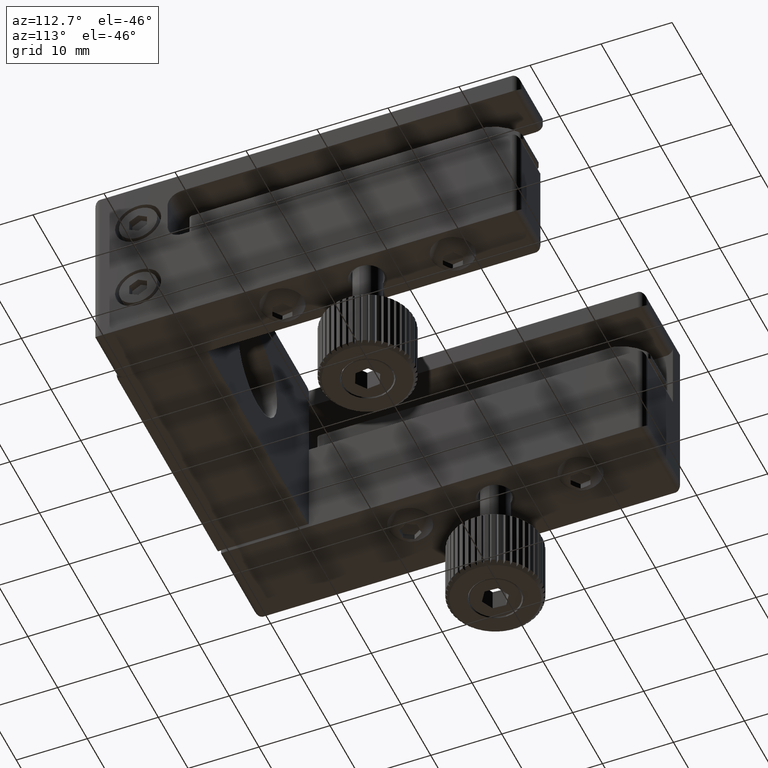
[diagram: clean part render]
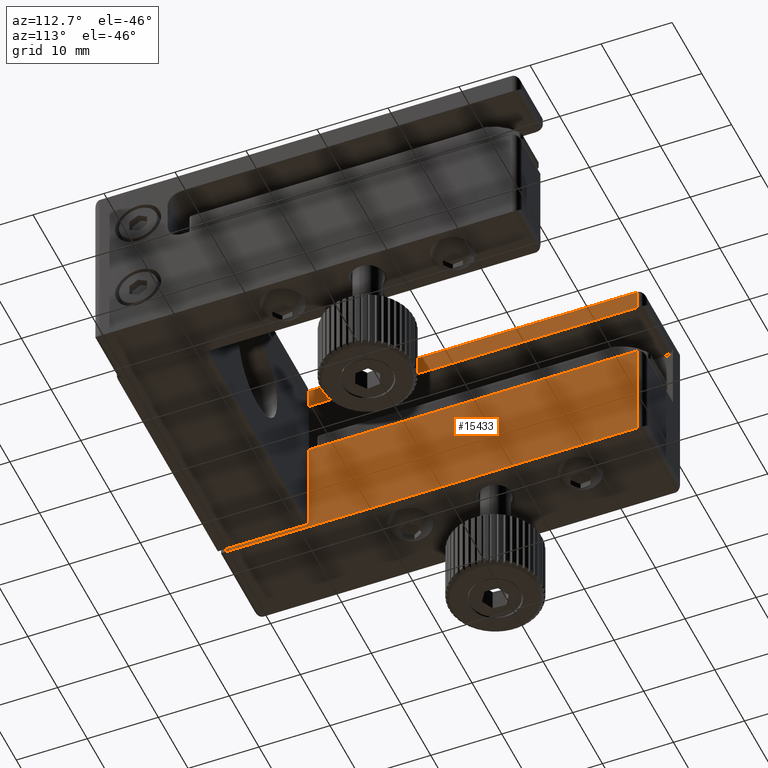
[diagram: same view with one face highlighted and labeled with its STEP entity id]
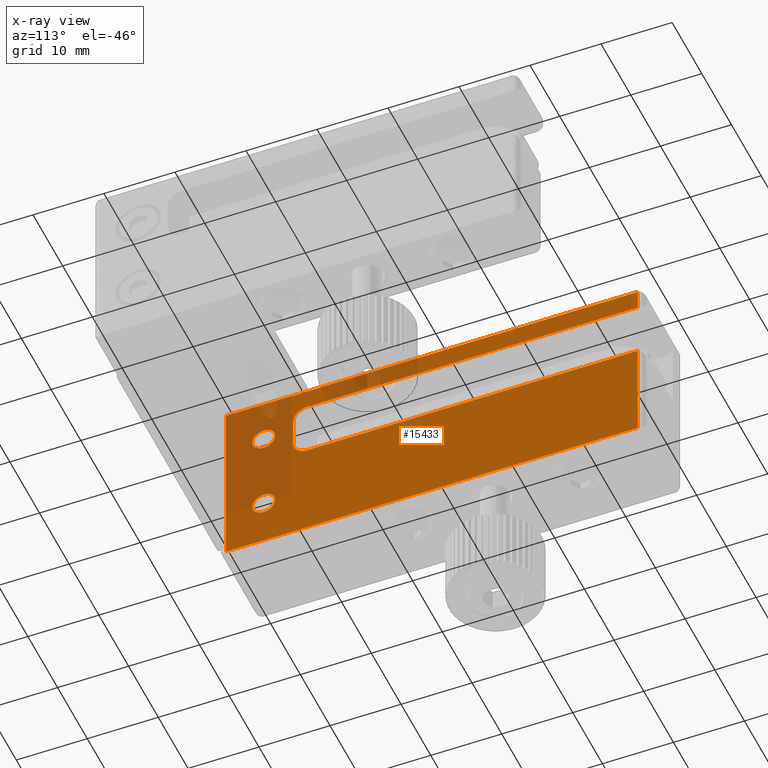
[diagram: x-ray of the same camera — body ghosted, the highlighted face saturated]
A machine part, auxiliary view. The second image highlights one B-rep face of the part: STEP entity #15433.
The next image is the same camera in x-ray: the body ghosted, the highlighted face saturated — about 18% of this face is hidden behind the body in this view.
In plain terms, the highlighted planar face has unit normal (-1, -0, 0).
Its self-contained STEP definition (entity closure, byte-faithful):
#93 = LINE ( 'NONE', #11748, #97 ) ;
#95 = CIRCLE ( 'NONE', #15787, 2.000000000000000000 ) ;
#97 = VECTOR ( 'NONE', #11745, 1000.000000000000000 ) ;
#102 = LINE ( 'NONE', #11756, #106 ) ;
#106 = VECTOR ( 'NONE', #11768, 1000.000000000000000 ) ;
#114 = LINE ( 'NONE', #11788, #116 ) ;
#116 = VECTOR ( 'NONE', #11789, 1000.000000000000000 ) ;
#130 = LINE ( 'NONE', #11812, #133 ) ;
#133 = VECTOR ( 'NONE', #11824, 1000.000000000000000 ) ;
#761 = AXIS2_PLACEMENT_3D ( 'NONE', #4827, #4828, #4829 ) ;
#813 = AXIS2_PLACEMENT_3D ( 'NONE', #6475, #6476, #6477 ) ;
#814 = AXIS2_PLACEMENT_3D ( 'NONE', #6485, #6486, #6487 ) ;
#2808 = CARTESIAN_POINT ( 'NONE',  ( -23.63249027237354100, 3.663330451073643100, 9.599999999999992500 ) ) ;
#2810 = CARTESIAN_POINT ( 'NONE',  ( -23.63249027237354100, 1.663330451073641300, 7.599999999999992500 ) ) ;
#2812 = CARTESIAN_POINT ( 'NONE',  ( -23.63249027237354100, 50.16333045107364100, 9.599999999999997900 ) ) ;
#2814 = CARTESIAN_POINT ( 'NONE',  ( -23.63249027237354100, 50.16333045107363400, 12.49999999999999600 ) ) ;
#2816 = CARTESIAN_POINT ( 'NONE',  ( -23.63249027237354100, -7.836669548926346700, 12.49999999999999600 ) ) ;
#2818 = CARTESIAN_POINT ( 'NONE',  ( -23.63249027237354100, -7.836669548926346700, -12.90000000000000200 ) ) ;
#2824 = CARTESIAN_POINT ( 'NONE',  ( -23.63249027237354100, 50.16333045107363400, -12.90000000000000200 ) ) ;
#2826 = CARTESIAN_POINT ( 'NONE',  ( -23.63249027237354100, 50.16333045107364100, 1.499999999999997600 ) ) ;
#2827 = CARTESIAN_POINT ( 'NONE',  ( -23.63249027237354100, 1.663330451073641300, 3.499999999999992900 ) ) ;
#2828 = CARTESIAN_POINT ( 'NONE',  ( -23.63249027237354100, 3.663330451073643100, 1.499999999999992000 ) ) ;
#4775 = CARTESIAN_POINT ( 'NONE',  ( -23.63249027237354100, -7.836669548926352900, 11.49999999999999600 ) ) ;
#4787 = DIRECTION ( 'NONE',  ( 0.0000000000000000000, 0.0000000000000000000, -1.000000000000000000 ) ) ;
#4798 = CARTESIAN_POINT ( 'NONE',  ( -23.63249027237354100, 50.16333045107364100, 11.49999999999999600 ) ) ;
#4799 = DIRECTION ( 'NONE',  ( 0.0000000000000000000, 0.0000000000000000000, 1.000000000000000000 ) ) ;
#4827 = CARTESIAN_POINT ( 'NONE',  ( -23.63249027237354100, 3.663330451073639500, 7.599999999999992500 ) ) ;
#4828 = DIRECTION ( 'NONE',  ( -1.000000000000000000, -0.0000000000000000000, -0.0000000000000000000 ) ) ;
#4829 = DIRECTION ( 'NONE',  ( 0.0000000000000000000, -1.000000000000000000, 0.0000000000000000000 ) ) ;
#4960 = LINE ( 'NONE', #4775, #4965 ) ;
#4965 = VECTOR ( 'NONE', #4787, 1000.000000000000000 ) ;
#4968 = LINE ( 'NONE', #4798, #4969 ) ;
#4969 = VECTOR ( 'NONE', #4799, 1000.000000000000000 ) ;
#4978 = CIRCLE ( 'NONE', #761, 2.000000000000000000 ) ;
#5187 = CIRCLE ( 'NONE', #813, 1.599999999999997200 ) ;
#5188 = LINE ( 'NONE', #6479, #5193 ) ;
#5192 = LINE ( 'NONE', #6519, #5216 ) ;
#5193 = VECTOR ( 'NONE', #6482, 1000.000000000000000 ) ;
#5194 = CIRCLE ( 'NONE', #814, 1.599999999999997200 ) ;
#5216 = VECTOR ( 'NONE', #6528, 1000.000000000000000 ) ;
#5752 = FACE_OUTER_BOUND ( 'NONE', #12835, .T. ) ;
#5757 = FACE_BOUND ( 'NONE', #12819, .T. ) ;
#5763 = FACE_BOUND ( 'NONE', #12833, .T. ) ;
#5938 = VERTEX_POINT ( 'NONE', #9514 ) ;
#5939 = VERTEX_POINT ( 'NONE', #9515 ) ;
#6475 = CARTESIAN_POINT ( 'NONE',  ( -23.63249027237354100, -2.486669548926355900, -6.000000000000001800 ) ) ;
#6476 = DIRECTION ( 'NONE',  ( -1.000000000000000000, -0.0000000000000000000, -0.0000000000000000000 ) ) ;
#6477 = DIRECTION ( 'NONE',  ( 0.0000000000000000000, -1.000000000000000000, 0.0000000000000000000 ) ) ;
#6479 = CARTESIAN_POINT ( 'NONE',  ( -23.63249027237354100, 1.663330451073641300, 9.599999999999992500 ) ) ;
#6482 = DIRECTION ( 'NONE',  ( 0.0000000000000000000, 0.0000000000000000000, -1.000000000000000000 ) ) ;
#6485 = CARTESIAN_POINT ( 'NONE',  ( -23.63249027237354100, -2.486669548926355900, 5.999999999999998200 ) ) ;
#6486 = DIRECTION ( 'NONE',  ( -1.000000000000000000, -0.0000000000000000000, -0.0000000000000000000 ) ) ;
#6487 = DIRECTION ( 'NONE',  ( 0.0000000000000000000, -1.000000000000000000, 0.0000000000000000000 ) ) ;
#6519 = CARTESIAN_POINT ( 'NONE',  ( -23.63249027237354100, 51.16333045107364100, 9.599999999999997900 ) ) ;
#6528 = DIRECTION ( 'NONE',  ( 0.0000000000000000000, -1.000000000000000000, -1.051347561198064800E-016 ) ) ;
#8033 = DIRECTION ( 'NONE',  ( -1.000000000000000000, -0.0000000000000000000, 0.0000000000000000000 ) ) ;
#8036 = CARTESIAN_POINT ( 'NONE',  ( -23.63249027237354100, 50.16333045107364100, 11.49999999999999600 ) ) ;
#8038 = PLANE ( 'NONE',  #8415 ) ;
#8040 = DIRECTION ( 'NONE',  ( 0.0000000000000000000, -1.000000000000000000, 0.0000000000000000000 ) ) ;
#8415 = AXIS2_PLACEMENT_3D ( 'NONE', #8036, #8033, #8040 ) ;
#9514 = CARTESIAN_POINT ( 'NONE',  ( -23.63249027237354100, -4.086669548926353800, -6.000000000000001800 ) ) ;
#9515 = CARTESIAN_POINT ( 'NONE',  ( -23.63249027237354100, -4.086669548926353800, 5.999999999999998200 ) ) ;
#11745 = DIRECTION ( 'NONE',  ( 0.0000000000000000000, 1.000000000000000000, 0.0000000000000000000 ) ) ;
#11748 = CARTESIAN_POINT ( 'NONE',  ( -23.63249027237354100, -7.836669548926346700, -12.90000000000000200 ) ) ;
#11753 = CARTESIAN_POINT ( 'NONE',  ( -23.63249027237354100, 3.663330451073643100, 3.499999999999992500 ) ) ;
#11754 = DIRECTION ( 'NONE',  ( -1.000000000000000000, -0.0000000000000000000, -0.0000000000000000000 ) ) ;
#11755 = DIRECTION ( 'NONE',  ( 0.0000000000000000000, -1.000000000000000000, 0.0000000000000000000 ) ) ;
#11756 = CARTESIAN_POINT ( 'NONE',  ( -23.63249027237354100, 51.16333045107364100, 1.499999999999997800 ) ) ;
#11768 = DIRECTION ( 'NONE',  ( 0.0000000000000000000, 1.000000000000000000, 1.226572154731075600E-016 ) ) ;
#11788 = CARTESIAN_POINT ( 'NONE',  ( -23.63249027237354100, 50.16333045107364100, 11.49999999999999600 ) ) ;
#11789 = DIRECTION ( 'NONE',  ( 0.0000000000000000000, 0.0000000000000000000, 1.000000000000000000 ) ) ;
#11812 = CARTESIAN_POINT ( 'NONE',  ( -23.63249027237354100, -7.836669548926346700, 12.49999999999999600 ) ) ;
#11824 = DIRECTION ( 'NONE',  ( -0.0000000000000000000, -1.000000000000000000, -0.0000000000000000000 ) ) ;
#11970 = EDGE_CURVE ( 'NONE', #13333, #13339, #93, .T. ) ;
#11971 = EDGE_CURVE ( 'NONE', #13343, #13342, #95, .T. ) ;
#11976 = EDGE_CURVE ( 'NONE', #13343, #13341, #102, .T. ) ;
#11984 = EDGE_CURVE ( 'NONE', #13339, #13341, #114, .T. ) ;
#11997 = EDGE_CURVE ( 'NONE', #13329, #13331, #130, .T. ) ;
#12819 = EDGE_LOOP ( 'NONE', ( #16943 ) ) ;
#12833 = EDGE_LOOP ( 'NONE', ( #16944 ) ) ;
#12835 = EDGE_LOOP ( 'NONE', ( #16945, #16946, #16947, #16948, #16949, #16950, #16951, #16952, #16953, #16954 ) ) ;
#13323 = VERTEX_POINT ( 'NONE', #2808 ) ;
#13325 = VERTEX_POINT ( 'NONE', #2810 ) ;
#13327 = VERTEX_POINT ( 'NONE', #2812 ) ;
#13329 = VERTEX_POINT ( 'NONE', #2814 ) ;
#13331 = VERTEX_POINT ( 'NONE', #2816 ) ;
#13333 = VERTEX_POINT ( 'NONE', #2818 ) ;
#13339 = VERTEX_POINT ( 'NONE', #2824 ) ;
#13341 = VERTEX_POINT ( 'NONE', #2826 ) ;
#13342 = VERTEX_POINT ( 'NONE', #2827 ) ;
#13343 = VERTEX_POINT ( 'NONE', #2828 ) ;
#14826 = EDGE_CURVE ( 'NONE', #13331, #13333, #4960, .T. ) ;
#14830 = EDGE_CURVE ( 'NONE', #13327, #13329, #4968, .T. ) ;
#14839 = EDGE_CURVE ( 'NONE', #13325, #13323, #4978, .T. ) ;
#15055 = EDGE_CURVE ( 'NONE', #5938, #5938, #5187, .T. ) ;
#15058 = EDGE_CURVE ( 'NONE', #13325, #13342, #5188, .T. ) ;
#15060 = EDGE_CURVE ( 'NONE', #5939, #5939, #5194, .T. ) ;
#15075 = EDGE_CURVE ( 'NONE', #13327, #13323, #5192, .T. ) ;
#15433 = ADVANCED_FACE ( 'NONE', ( #5757, #5763, #5752 ), #8038, .F. ) ;
#15787 = AXIS2_PLACEMENT_3D ( 'NONE', #11753, #11754, #11755 ) ;
#16943 = ORIENTED_EDGE ( 'NONE', *, *, #15060, .T. ) ;
#16944 = ORIENTED_EDGE ( 'NONE', *, *, #15055, .T. ) ;
#16945 = ORIENTED_EDGE ( 'NONE', *, *, #15075, .F. ) ;
#16946 = ORIENTED_EDGE ( 'NONE', *, *, #14830, .T. ) ;
#16947 = ORIENTED_EDGE ( 'NONE', *, *, #11997, .T. ) ;
#16948 = ORIENTED_EDGE ( 'NONE', *, *, #14826, .T. ) ;
#16949 = ORIENTED_EDGE ( 'NONE', *, *, #11970, .T. ) ;
#16950 = ORIENTED_EDGE ( 'NONE', *, *, #11984, .T. ) ;
#16951 = ORIENTED_EDGE ( 'NONE', *, *, #11976, .F. ) ;
#16952 = ORIENTED_EDGE ( 'NONE', *, *, #11971, .T. ) ;
#16953 = ORIENTED_EDGE ( 'NONE', *, *, #15058, .F. ) ;
#16954 = ORIENTED_EDGE ( 'NONE', *, *, #14839, .T. ) ;